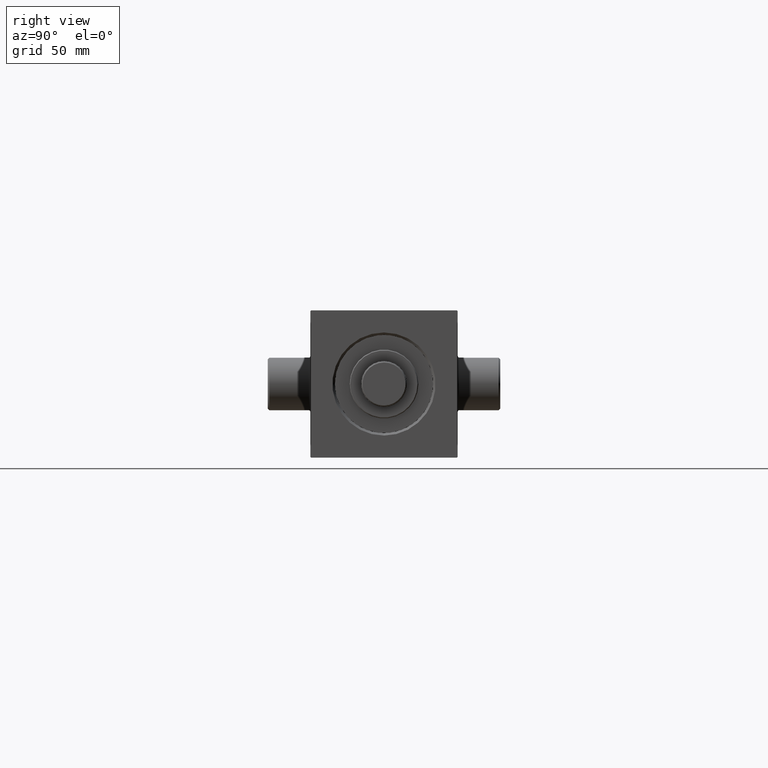
[diagram: clean part render]
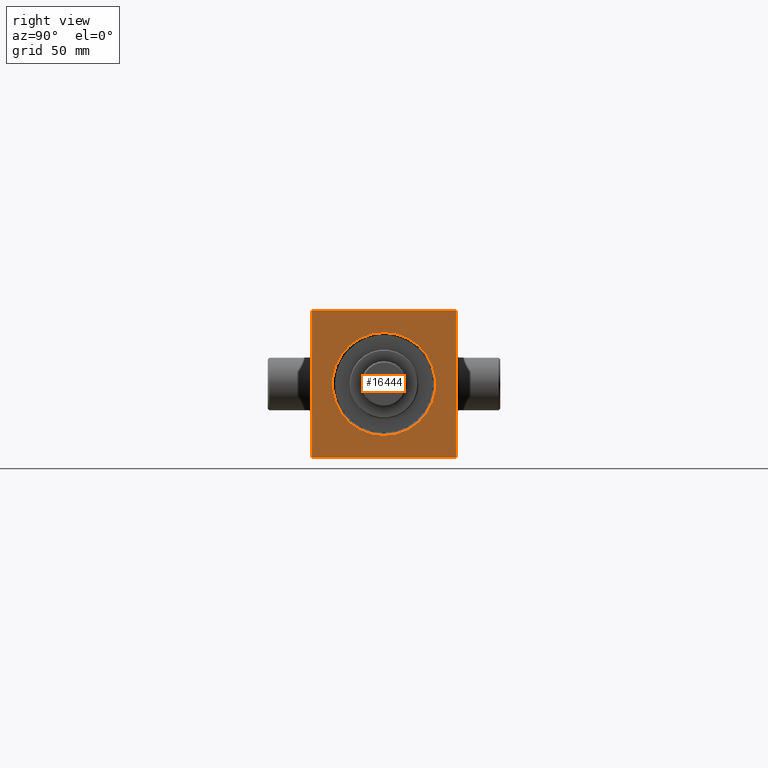
[diagram: same view with one face highlighted and labeled with its STEP entity id]
A machine part, right view. The second image highlights one B-rep face of the part: STEP entity #16444.
In plain terms, the highlighted planar face has unit normal (-1, 0, 0).
Its self-contained STEP definition (entity closure, byte-faithful):
#419 = ORIENTED_EDGE ( 'NONE', *, *, #17476, .T. ) ;
#538 = VECTOR ( 'NONE', #25835, 1000.000000000000000 ) ;
#542 = CARTESIAN_POINT ( 'NONE',  ( 337.9999999999999432, 44.50000000000000711, -45.00000000000000711 ) ) ;
#572 = VERTEX_POINT ( 'NONE', #21624 ) ;
#2454 = VERTEX_POINT ( 'NONE', #28954 ) ;
#2819 = VERTEX_POINT ( 'NONE', #18421 ) ;
#3125 = EDGE_CURVE ( 'NONE', #20940, #2454, #10353, .T. ) ;
#3547 = VERTEX_POINT ( 'NONE', #8775 ) ;
#4229 = VECTOR ( 'NONE', #14139, 1000.000000000000000 ) ;
#5464 = DIRECTION ( 'NONE',  ( -0.000000000000000000, -0.7071067811865426878, -0.7071067811865524577 ) ) ;
#6026 = ORIENTED_EDGE ( 'NONE', *, *, #46462, .T. ) ;
#6424 = DIRECTION ( 'NONE',  ( -1.000000000000000000, -0.000000000000000000, -0.000000000000000000 ) ) ;
#7174 = DIRECTION ( 'NONE',  ( -0.000000000000000000, 0.7071067811865474617, 0.7071067811865474617 ) ) ;
#7361 = DIRECTION ( 'NONE',  ( 0.000000000000000000, 0.000000000000000000, 1.000000000000000000 ) ) ;
#8534 = CARTESIAN_POINT ( 'NONE',  ( 337.9999999999999432, 44.50000000000000711, 45.00000000000000711 ) ) ;
#8775 = CARTESIAN_POINT ( 'NONE',  ( 337.9999999999999432, -43.99999999999999289, 45.00000000000000000 ) ) ;
#9059 = EDGE_CURVE ( 'NONE', #3547, #2819, #44935, .T. ) ;
#9095 = AXIS2_PLACEMENT_3D ( 'NONE', #36269, #18764, #40045 ) ;
#9227 = EDGE_CURVE ( 'NONE', #16961, #10498, #46582, .T. ) ;
#9472 = ORIENTED_EDGE ( 'NONE', *, *, #22257, .T. ) ;
#9842 = EDGE_LOOP ( 'NONE', ( #419, #12311, #26328, #33989, #31264, #6026, #9472, #17467 ) ) ;
#10353 = LINE ( 'NONE', #20744, #4229 ) ;
#10498 = VERTEX_POINT ( 'NONE', #17961 ) ;
#10531 = CIRCLE ( 'NONE', #30168, 31.49999999999991829 ) ;
#11785 = ORIENTED_EDGE ( 'NONE', *, *, #13669, .T. ) ;
#11829 = ORIENTED_EDGE ( 'NONE', *, *, #45119, .T. ) ;
#12311 = ORIENTED_EDGE ( 'NONE', *, *, #9227, .T. ) ;
#13335 = DIRECTION ( 'NONE',  ( 0.000000000000000000, 0.000000000000000000, -1.000000000000000000 ) ) ;
#13669 = EDGE_CURVE ( 'NONE', #35766, #572, #14328, .T. ) ;
#14139 = DIRECTION ( 'NONE',  ( 0.000000000000000000, 0.000000000000000000, -1.000000000000000000 ) ) ;
#14222 = DIRECTION ( 'NONE',  ( 0.000000000000000000, 0.7071067811865328068, -0.7071067811865622277 ) ) ;
#14328 = CIRCLE ( 'NONE', #46759, 31.49999999999991829 ) ;
#15232 = PLANE ( 'NONE',  #9095 ) ;
#16444 = ADVANCED_FACE ( 'NONE', ( #21839, #36037 ), #15232, .F. ) ;
#16961 = VERTEX_POINT ( 'NONE', #34247 ) ;
#17467 = ORIENTED_EDGE ( 'NONE', *, *, #9059, .T. ) ;
#17476 = EDGE_CURVE ( 'NONE', #2819, #16961, #31288, .T. ) ;
#17753 = CARTESIAN_POINT ( 'NONE',  ( 337.9999999999999432, -43.99999999999999289, -45.00000000000000000 ) ) ;
#17961 = CARTESIAN_POINT ( 'NONE',  ( 337.9999999999999432, -43.99999999999999289, -45.00000000000000000 ) ) ;
#18421 = CARTESIAN_POINT ( 'NONE',  ( 337.9999999999999432, -44.49999999999998579, 44.50000000000000000 ) ) ;
#18764 = DIRECTION ( 'NONE',  ( -1.000000000000000000, 0.000000000000000000, -0.000000000000000000 ) ) ;
#20744 = CARTESIAN_POINT ( 'NONE',  ( 337.9999999999999432, 44.50000000000000711, 45.00000000000000711 ) ) ;
#20940 = VERTEX_POINT ( 'NONE', #44795 ) ;
#21624 = CARTESIAN_POINT ( 'NONE',  ( 337.9999999999999432, 0.000000000000000000, -31.49999999999991829 ) ) ;
#21839 = FACE_BOUND ( 'NONE', #39602, .T. ) ;
#22257 = EDGE_CURVE ( 'NONE', #29271, #3547, #40926, .T. ) ;
#22602 = DIRECTION ( 'NONE',  ( 0.000000000000000000, 0.000000000000000000, 1.000000000000000000 ) ) ;
#22946 = DIRECTION ( 'NONE',  ( 0.000000000000000000, -1.000000000000000000, -7.796510004390144799E-17 ) ) ;
#23468 = VECTOR ( 'NONE', #13335, 1000.000000000000000 ) ;
#23531 = LINE ( 'NONE', #37948, #30784 ) ;
#25329 = CARTESIAN_POINT ( 'NONE',  ( 337.9999999999999432, 0.000000000000000000, 0.000000000000000000 ) ) ;
#25835 = DIRECTION ( 'NONE',  ( 0.000000000000000000, -1.000000000000000000, 7.796510004390144799E-17 ) ) ;
#26328 = ORIENTED_EDGE ( 'NONE', *, *, #40639, .F. ) ;
#26753 = LINE ( 'NONE', #542, #538 ) ;
#28954 = CARTESIAN_POINT ( 'NONE',  ( 337.9999999999999432, 44.50000000000000711, -44.49999999999997868 ) ) ;
#29271 = VERTEX_POINT ( 'NONE', #38703 ) ;
#29464 = DIRECTION ( 'NONE',  ( 0.000000000000000000, -0.7071067811865474617, 0.7071067811865474617 ) ) ;
#30168 = AXIS2_PLACEMENT_3D ( 'NONE', #25329, #6424, #7361 ) ;
#30650 = CARTESIAN_POINT ( 'NONE',  ( 337.9999999999999432, 0.000000000000000000, 0.000000000000000000 ) ) ;
#30784 = VECTOR ( 'NONE', #7174, 1000.000000000000114 ) ;
#31264 = ORIENTED_EDGE ( 'NONE', *, *, #3125, .F. ) ;
#31288 = LINE ( 'NONE', #45690, #23468 ) ;
#33989 = ORIENTED_EDGE ( 'NONE', *, *, #42289, .T. ) ;
#34247 = CARTESIAN_POINT ( 'NONE',  ( 337.9999999999999432, -44.49999999999998579, -44.49999999999995737 ) ) ;
#35766 = VERTEX_POINT ( 'NONE', #41473 ) ;
#36037 = FACE_OUTER_BOUND ( 'NONE', #9842, .T. ) ;
#36067 = VECTOR ( 'NONE', #5464, 1000.000000000000000 ) ;
#36269 = CARTESIAN_POINT ( 'NONE',  ( 337.9999999999999432, 0.000000000000000000, 0.000000000000000000 ) ) ;
#37016 = LINE ( 'NONE', #39868, #40019 ) ;
#37948 = CARTESIAN_POINT ( 'NONE',  ( 337.9999999999999432, 44.50000000000000711, -44.50000000000000711 ) ) ;
#38703 = CARTESIAN_POINT ( 'NONE',  ( 337.9999999999999432, 44.00000000000000711, 45.00000000000000711 ) ) ;
#39155 = VERTEX_POINT ( 'NONE', #40357 ) ;
#39602 = EDGE_LOOP ( 'NONE', ( #11829, #11785 ) ) ;
#39868 = CARTESIAN_POINT ( 'NONE',  ( 337.9999999999999432, 44.00000000000000711, 45.00000000000000711 ) ) ;
#40019 = VECTOR ( 'NONE', #29464, 1000.000000000000114 ) ;
#40045 = DIRECTION ( 'NONE',  ( -0.000000000000000000, 0.000000000000000000, 1.000000000000000000 ) ) ;
#40341 = DIRECTION ( 'NONE',  ( -1.000000000000000000, -0.000000000000000000, -0.000000000000000000 ) ) ;
#40357 = CARTESIAN_POINT ( 'NONE',  ( 337.9999999999999432, 44.00000000000000711, -45.00000000000000711 ) ) ;
#40639 = EDGE_CURVE ( 'NONE', #39155, #10498, #26753, .T. ) ;
#40926 = LINE ( 'NONE', #8534, #44608 ) ;
#41175 = CARTESIAN_POINT ( 'NONE',  ( 337.9999999999999432, -44.49999999999998579, 44.50000000000000000 ) ) ;
#41473 = CARTESIAN_POINT ( 'NONE',  ( 337.9999999999999432, 3.857637417314152434E-15, 31.49999999999991829 ) ) ;
#42289 = EDGE_CURVE ( 'NONE', #39155, #2454, #23531, .T. ) ;
#44608 = VECTOR ( 'NONE', #22946, 1000.000000000000000 ) ;
#44795 = CARTESIAN_POINT ( 'NONE',  ( 337.9999999999999432, 44.50000000000000711, 44.50000000000000711 ) ) ;
#44935 = LINE ( 'NONE', #41175, #36067 ) ;
#45119 = EDGE_CURVE ( 'NONE', #572, #35766, #10531, .T. ) ;
#45161 = VECTOR ( 'NONE', #14222, 1000.000000000000000 ) ;
#45690 = CARTESIAN_POINT ( 'NONE',  ( 337.9999999999999432, -44.49999999999998579, 45.00000000000000000 ) ) ;
#46462 = EDGE_CURVE ( 'NONE', #20940, #29271, #37016, .T. ) ;
#46582 = LINE ( 'NONE', #17753, #45161 ) ;
#46759 = AXIS2_PLACEMENT_3D ( 'NONE', #30650, #40341, #22602 ) ;